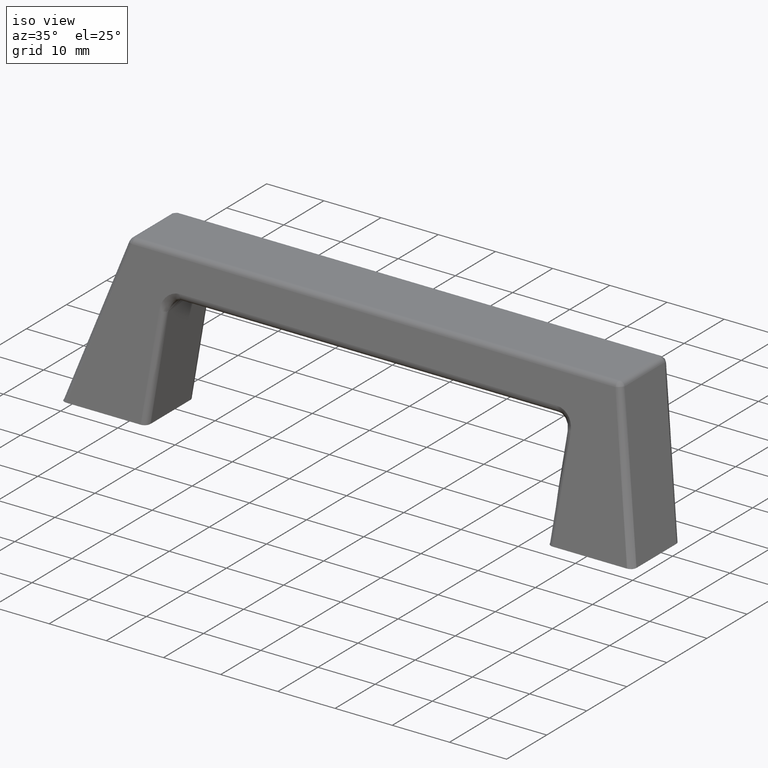
[diagram: clean part render]
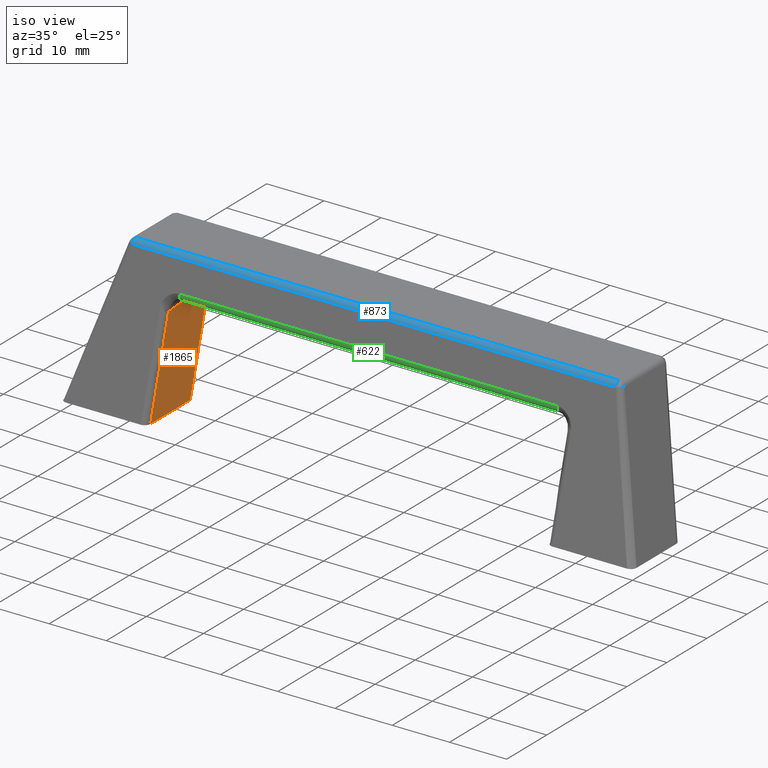
[diagram: same view with three faces highlighted in distinct colors, each labeled with its STEP entity id]
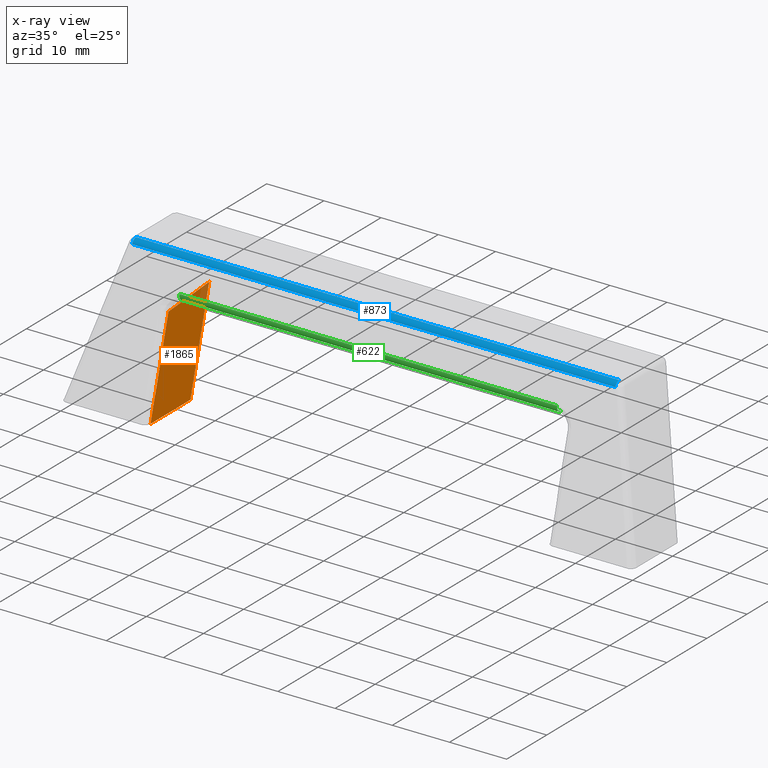
[diagram: x-ray of the same camera — body ghosted, the three highlighted faces saturated]
A machine part, iso view with three faces highlighted in distinct colors.
The next image is the same camera in x-ray (body ghosted, the three faces saturated) — at least one of them is partly hidden behind the body in this view.
Their STEP definitions:

[orange] entity #1865 — the highlighted face is a freeform B-spline surface patch.
#663=CARTESIAN_POINT('',(-35.0,5.527325374033150,16.033100032198501));
#664=VERTEX_POINT('',#663);
#724=CARTESIAN_POINT('',(-35.0,1.038453733374300,0.0));
#725=VERTEX_POINT('',#724);
#743=CARTESIAN_POINT('',(-35.0,5.527325374033150,16.033100032198501));
#744=CARTESIAN_POINT('',(-35.0,1.038453733374300,0.0));
#745=QUASI_UNIFORM_CURVE('',1,(#743,#744),.UNSPECIFIED.,.F.,.U.);
#746=EDGE_CURVE('',#664,#725,#745,.T.);
#1311=CARTESIAN_POINT('',(-35.0,10.961544145976500,0.0));
#1312=VERTEX_POINT('',#1311);
#1333=CARTESIAN_POINT('',(-35.0,15.682066944421649,16.860024986017901));
#1334=VERTEX_POINT('',#1333);
#1348=CARTESIAN_POINT('',(-35.0,10.961544145976500,0.0));
#1349=CARTESIAN_POINT('',(-35.0,15.682066944421649,16.860024986017901));
#1350=QUASI_UNIFORM_CURVE('',1,(#1348,#1349),.UNSPECIFIED.,.F.,.U.);
#1351=EDGE_CURVE('',#1312,#1334,#1350,.T.);
#1669=CARTESIAN_POINT('',(-35.0,15.682066944421649,16.860024986017901));
#1670=CARTESIAN_POINT('',(-35.0,5.527325374033150,16.033100032198501));
#1671=QUASI_UNIFORM_CURVE('',1,(#1669,#1670),.UNSPECIFIED.,.F.,.U.);
#1672=EDGE_CURVE('',#1334,#664,#1671,.T.);
#1825=CARTESIAN_POINT('',(-35.0,10.961544145976500,0.0));
#1826=CARTESIAN_POINT('',(-35.0,1.038453733374300,0.0));
#1827=QUASI_UNIFORM_CURVE('',1,(#1825,#1826),.UNSPECIFIED.,.F.,.U.);
#1828=EDGE_CURVE('',#1312,#725,#1827,.T.);
#1854=CARTESIAN_POINT('',(-35.0,0.307005144400886,-0.842158215373594));
#1855=CARTESIAN_POINT('',(-35.0,0.307005144400886,17.702183653612611));
#1856=CARTESIAN_POINT('',(-35.0,16.413515795243271,-0.842158215373594));
#1857=CARTESIAN_POINT('',(-35.0,16.413515795243271,17.702183653612611));
#1858=B_SPLINE_SURFACE_WITH_KNOTS('',1,1,((#1854,#1856),(#1855,#1857)),.UNSPECIFIED.,.F.,.F.,.U.,(2,2),(2,2),(0.0,18.544341868986201),(0.0,16.106510650842392),.UNSPECIFIED.);
#1859=ORIENTED_EDGE('',*,*,#1672,.T.);
#1860=ORIENTED_EDGE('',*,*,#746,.T.);
#1861=ORIENTED_EDGE('',*,*,#1828,.F.);
#1862=ORIENTED_EDGE('',*,*,#1351,.T.);
#1863=EDGE_LOOP('',(#1859,#1860,#1861,#1862));
#1864=FACE_OUTER_BOUND('',#1863,.T.);
#1865=ADVANCED_FACE('',(#1864),#1858,.F.);

[blue] entity #873 — the highlighted face is a freeform B-spline surface patch.
#781=CARTESIAN_POINT('',(42.241339607118150,6.794890207625129,24.269607849751200));
#782=VERTEX_POINT('',#781);
#798=CARTESIAN_POINT('',(42.241339607118150,7.757860408281641,25.0));
#799=VERTEX_POINT('',#798);
#813=CARTESIAN_POINT('',(42.241339607118150,7.757860408281690,25.0));
#814=CARTESIAN_POINT('',(42.241339607118157,6.999381953028541,25.0));
#815=CARTESIAN_POINT('',(42.241339607118150,6.794890207625130,24.269607849751200));
#823=(BOUNDED_CURVE()B_SPLINE_CURVE(2,(#813,#814,#815),.UNSPECIFIED.,.F.,.U.)CURVE()GEOMETRIC_REPRESENTATION_ITEM()QUASI_UNIFORM_CURVE()RATIONAL_B_SPLINE_CURVE((1.0,0.796745834551772,1.0))REPRESENTATION_ITEM(''));
#824=EDGE_CURVE('',#799,#782,#823,.T.);
#829=CARTESIAN_POINT('',(-44.353714079775962,6.785490487884002,24.233445363855861));
#830=CARTESIAN_POINT('',(44.406215949290512,6.785490487884002,24.233445363855861));
#831=CARTESIAN_POINT('',(-44.353714079775969,6.981193686500435,25.048607852059021));
#832=CARTESIAN_POINT('',(44.406215949290512,6.981193686500435,25.048607852059021));
#833=CARTESIAN_POINT('',(-44.353714079775962,7.818001700105721,24.998189874231215));
#834=CARTESIAN_POINT('',(44.406215949290512,7.818001700105721,24.998189874231215));
#842=(BOUNDED_SURFACE()B_SPLINE_SURFACE(1,2,((#829,#831,#833),(#830,#832,#834)),.UNSPECIFIED.,.F.,.F.,.U.)B_SPLINE_SURFACE_WITH_KNOTS((2,2),(3,3),(0.0,88.759930029066481),(0.0,0.985910544739943),.UNSPECIFIED.)GEOMETRIC_REPRESENTATION_ITEM()RATIONAL_B_SPLINE_SURFACE(((1.0,0.763781715028286,0.993343626084567),(1.0,0.763781715028286,0.993343626084567)))REPRESENTATION_ITEM('')SURFACE());
#843=CARTESIAN_POINT('',(-42.241639599607801,7.757860408281641,25.0));
#844=VERTEX_POINT('',#843);
#845=CARTESIAN_POINT('',(-42.241639599607801,6.794890207625129,24.269607849751200));
#846=VERTEX_POINT('',#845);
#847=CARTESIAN_POINT('',(-42.241639599607801,7.757860408281641,25.0));
#848=CARTESIAN_POINT('',(-42.241639599607801,6.999381953028503,25.000000000000007));
#849=CARTESIAN_POINT('',(-42.241639599607801,6.794890207625084,24.269607849751210));
#857=(BOUNDED_CURVE()B_SPLINE_CURVE(2,(#847,#848,#849),.UNSPECIFIED.,.F.,.U.)CURVE()GEOMETRIC_REPRESENTATION_ITEM()QUASI_UNIFORM_CURVE()RATIONAL_B_SPLINE_CURVE((1.0,0.796745834551776,1.0))REPRESENTATION_ITEM(''));
#858=EDGE_CURVE('',#844,#846,#857,.T.);
#859=ORIENTED_EDGE('',*,*,#858,.T.);
#860=CARTESIAN_POINT('',(42.241339607118150,6.794890207625129,24.269607849751200));
#861=CARTESIAN_POINT('',(-42.241639599607801,6.794890207625129,24.269607849751200));
#862=QUASI_UNIFORM_CURVE('',1,(#860,#861),.UNSPECIFIED.,.F.,.U.);
#863=EDGE_CURVE('',#782,#846,#862,.T.);
#864=ORIENTED_EDGE('',*,*,#863,.F.);
#865=ORIENTED_EDGE('',*,*,#824,.F.);
#866=CARTESIAN_POINT('',(-42.241639599607801,7.757860408281641,25.0));
#867=CARTESIAN_POINT('',(42.241339607118150,7.757860408281641,25.0));
#868=QUASI_UNIFORM_CURVE('',1,(#866,#867),.UNSPECIFIED.,.F.,.U.);
#869=EDGE_CURVE('',#844,#799,#868,.T.);
#870=ORIENTED_EDGE('',*,*,#869,.F.);
#871=EDGE_LOOP('',(#859,#864,#865,#870));
#872=FACE_OUTER_BOUND('',#871,.T.);
#873=ADVANCED_FACE('',(#872),#842,.T.);

[green] entity #622 — the highlighted face is a freeform B-spline surface patch.
#525=CARTESIAN_POINT('',(33.0,5.426722440661370,19.382862933752651));
#526=VERTEX_POINT('',#525);
#527=CARTESIAN_POINT('',(33.0,6.470856375732581,18.116554302314299));
#528=VERTEX_POINT('',#527);
#529=CARTESIAN_POINT('',(33.0,5.426722440661358,19.382862933752659));
#530=CARTESIAN_POINT('',(33.000000000000007,5.285930018799967,18.879988455669309));
#531=CARTESIAN_POINT('',(33.0,5.618148703171609,18.477079045856659));
#532=CARTESIAN_POINT('',(33.000000000000007,5.950367387543248,18.074169636044015));
#533=CARTESIAN_POINT('',(33.0,6.470856375732581,18.116554302314299));
#541=(BOUNDED_CURVE()B_SPLINE_CURVE(2,(#529,#530,#531,#532,#533),.UNSPECIFIED.,.F.,.U.)B_SPLINE_CURVE_WITH_KNOTS((3,2,3),(0.0,0.500000000000000,1.0),.UNSPECIFIED.)CURVE()GEOMETRIC_REPRESENTATION_ITEM()RATIONAL_B_SPLINE_CURVE((1.0,0.886412930643694,1.0,0.886412930643694,1.0))REPRESENTATION_ITEM(''));
#542=EDGE_CURVE('',#526,#528,#541,.T.);
#576=CARTESIAN_POINT('',(34.650000000000013,5.434109937244739,19.407978167040760));
#577=CARTESIAN_POINT('',(-34.691249999999997,5.434109937244739,19.407978167040760));
#578=CARTESIAN_POINT('',(34.650000000000013,4.971487364554406,17.908013778714146));
#579=CARTESIAN_POINT('',(-34.691249999999997,4.971487364554406,17.908013778714146));
#580=CARTESIAN_POINT('',(34.650000000000013,6.526429517484884,18.122647681093522));
#581=CARTESIAN_POINT('',(-34.691249999999997,6.526429517484884,18.122647681093522));
#589=(BOUNDED_SURFACE()B_SPLINE_SURFACE(1,2,((#576,#578,#580),(#577,#579,#581)),.UNSPECIFIED.,.F.,.F.,.U.)B_SPLINE_SURFACE_WITH_KNOTS((2,2),(3,3),(0.0,69.341250000000002),(0.0,2.194475146506670),.UNSPECIFIED.)GEOMETRIC_REPRESENTATION_ITEM()RATIONAL_B_SPLINE_SURFACE(((1.0,0.537299608346824,1.0),(1.0,0.537299608346824,1.0)))REPRESENTATION_ITEM('')SURFACE());
#590=CARTESIAN_POINT('',(-33.0,5.426722440661370,19.382862933752651));
#591=VERTEX_POINT('',#590);
#592=CARTESIAN_POINT('',(-33.0,6.470856375732581,18.116554302314299));
#593=VERTEX_POINT('',#592);
#594=CARTESIAN_POINT('',(-33.0,5.426722440661358,19.382862933752659));
#595=CARTESIAN_POINT('',(-33.000000000000007,5.285930018799967,18.879988455669309));
#596=CARTESIAN_POINT('',(-33.0,5.618148703171609,18.477079045856659));
#597=CARTESIAN_POINT('',(-33.000000000000007,5.950367387543248,18.074169636044015));
#598=CARTESIAN_POINT('',(-33.0,6.470856375732581,18.116554302314299));
#606=(BOUNDED_CURVE()B_SPLINE_CURVE(2,(#594,#595,#596,#597,#598),.UNSPECIFIED.,.F.,.U.)B_SPLINE_CURVE_WITH_KNOTS((3,2,3),(0.0,0.500000000000000,1.0),.UNSPECIFIED.)CURVE()GEOMETRIC_REPRESENTATION_ITEM()RATIONAL_B_SPLINE_CURVE((1.0,0.886412930643694,1.0,0.886412930643694,1.0))REPRESENTATION_ITEM(''));
#607=EDGE_CURVE('',#591,#593,#606,.T.);
#608=ORIENTED_EDGE('',*,*,#607,.T.);
#609=CARTESIAN_POINT('',(33.0,6.470856375732581,18.116554302314299));
#610=CARTESIAN_POINT('',(-33.0,6.470856375732581,18.116554302314299));
#611=QUASI_UNIFORM_CURVE('',1,(#609,#610),.UNSPECIFIED.,.F.,.U.);
#612=EDGE_CURVE('',#528,#593,#611,.T.);
#613=ORIENTED_EDGE('',*,*,#612,.F.);
#614=ORIENTED_EDGE('',*,*,#542,.F.);
#615=CARTESIAN_POINT('',(-33.0,5.426722440661370,19.382862933752651));
#616=CARTESIAN_POINT('',(33.0,5.426722440661370,19.382862933752651));
#617=QUASI_UNIFORM_CURVE('',1,(#615,#616),.UNSPECIFIED.,.F.,.U.);
#618=EDGE_CURVE('',#591,#526,#617,.T.);
#619=ORIENTED_EDGE('',*,*,#618,.F.);
#620=EDGE_LOOP('',(#608,#613,#614,#619));
#621=FACE_OUTER_BOUND('',#620,.T.);
#622=ADVANCED_FACE('',(#621),#589,.T.);